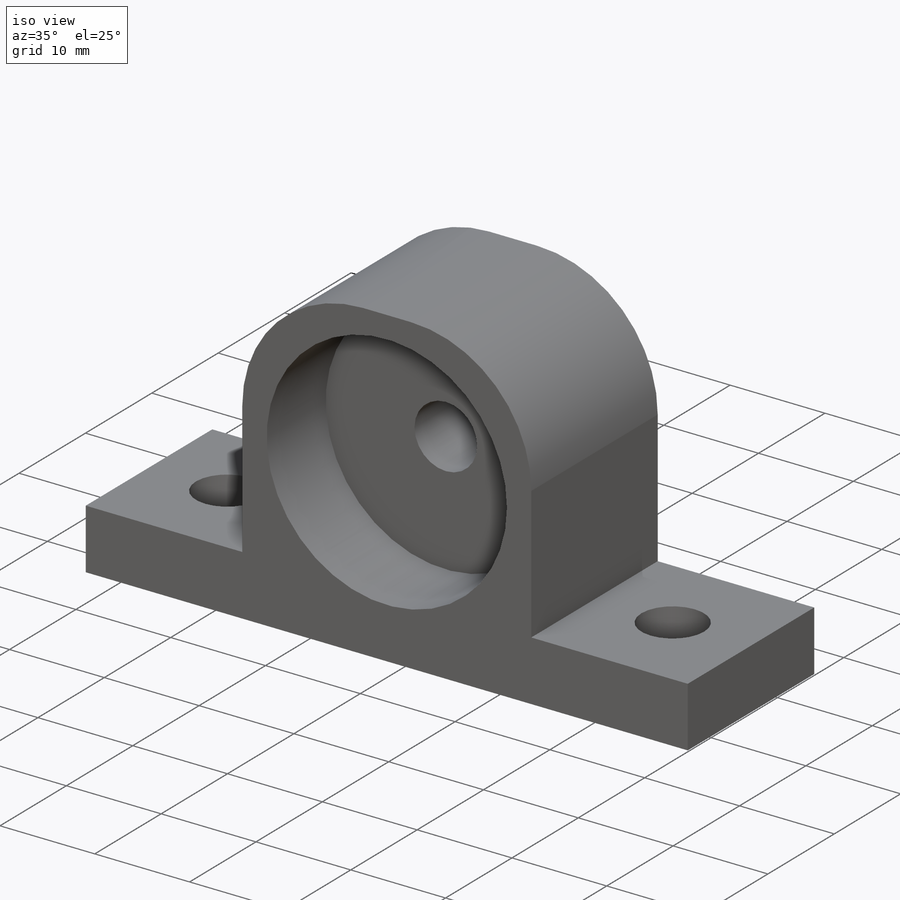
[diagram: iso view]
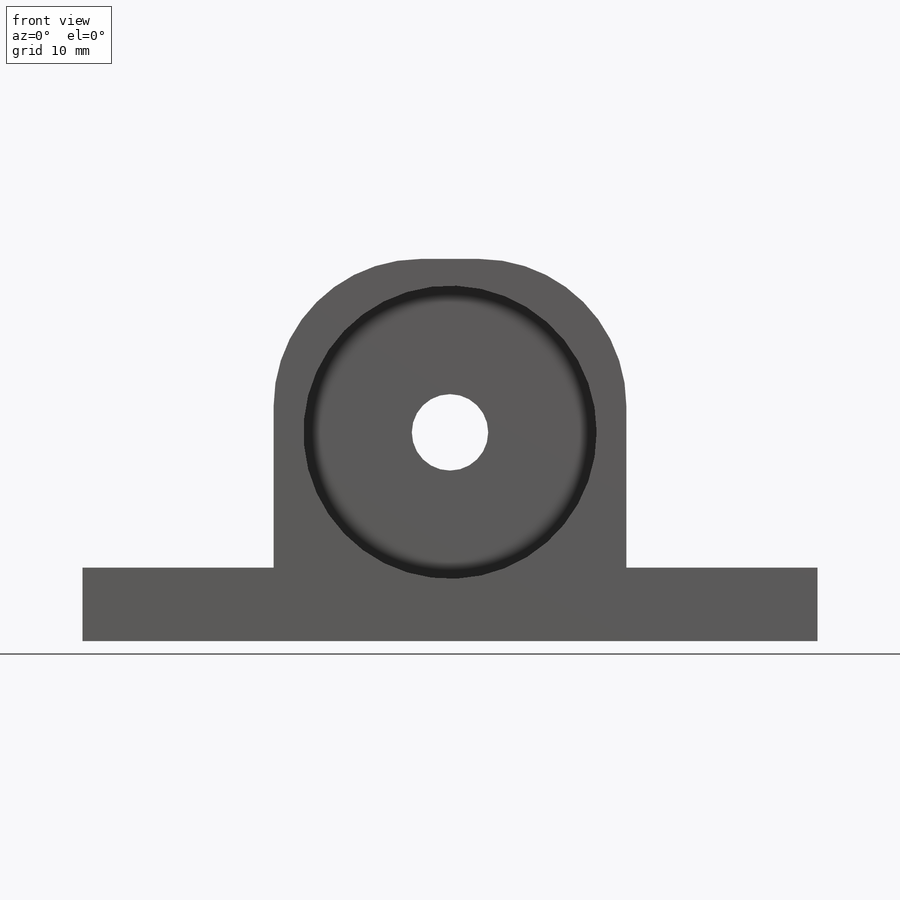
[diagram: front view]
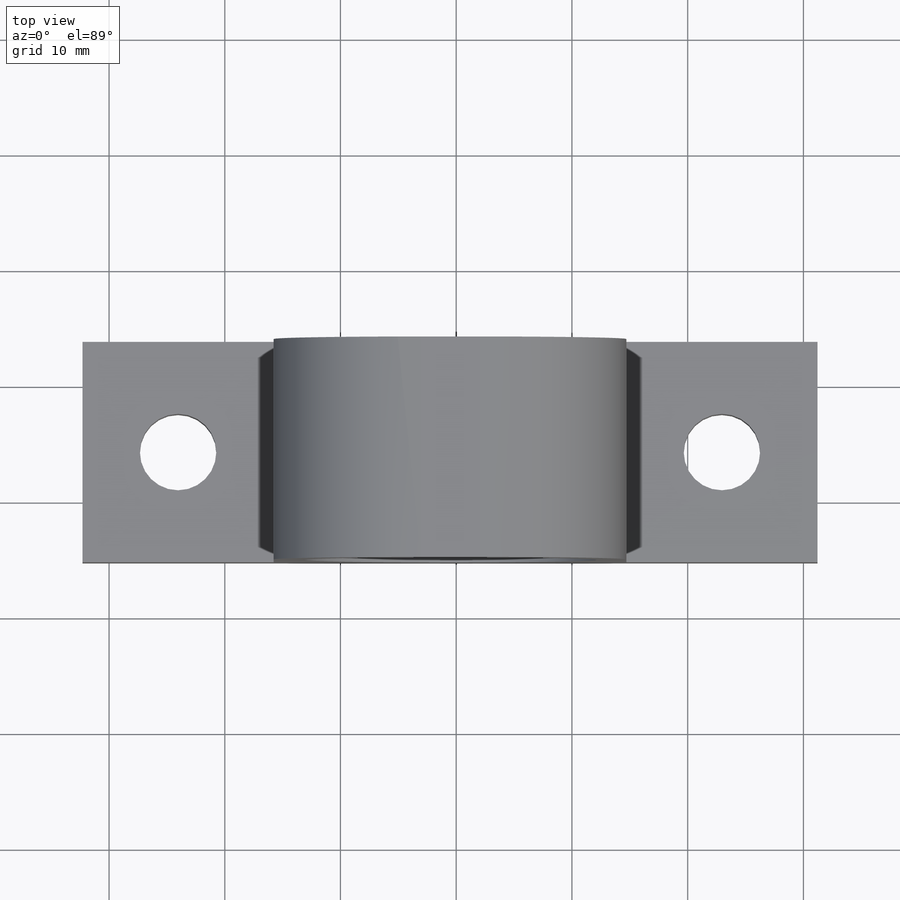
[diagram: top view]
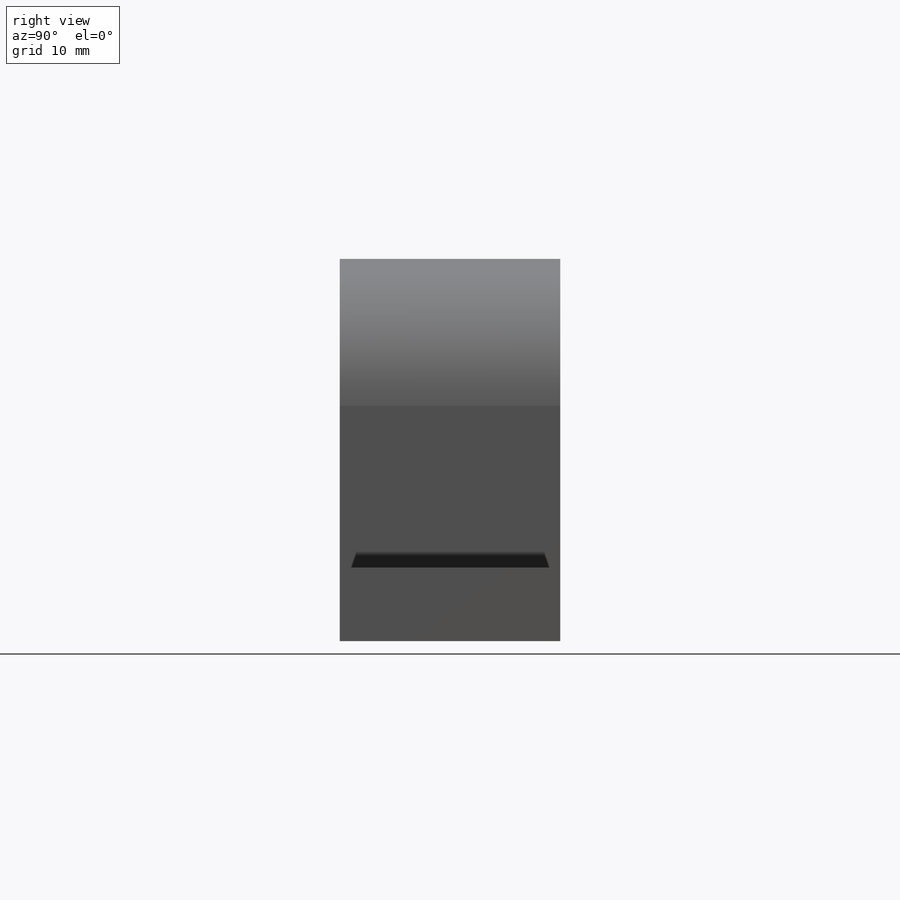
[diagram: right view]
SOLIDWORKS PART (.sldprt)
format: sldprt  version: not decoded by parser v0  size: 228,864 bytes
history: native  units: mm
features: sketch x5, cut_extrude x3, extrude x2, material x1, fillet x1 (+12 scaffold rows collapsed)
feature tree (24):
  scaffold x12  (default folders/planes/origin — collapsed)
  material  "Material <not specified>"
  sketch  "Sketch1"  dims[D1=63.5mm D2=19.05mm]
  extrude  "Boss-Extrude1"  Depth=6.35mm
  sketch  "Sketch2"  dims[D1=16.51mm D2=16.51mm D3=35.56mm]
  extrude  "Boss-Extrude2"  Depth=26.67mm
  sketch  "Sketch3"  dims[D1=6.604mm D2=6.604mm D3=8.255mm D4=8.255mm D5=9.525mm D6=9.525mm D7=8.255mm]
  cut_extrude  "Cut-Extrude1"  [1 undecoded]
  sketch  "Sketch4"  dims[c1.D1=15.24mm c1.D2=25.4mm c1.D3=15.24mm c2.D2=18.034mm c2.D3=30.48mm]
  cut_extrude  "Cut-Extrude2"  Depth=8.89mm
  sketch  "Sketch5"  dims[D3=6.604mm D1=18.034mm D2=15.24mm D4=6.35mm]
  cut_extrude  "Cut-Extrude3"  [1 undecoded]
  fillet  "Fillet1"  Radius=12.7mm
decode coverage: 9 of 11 modeling features carry decoded parameters
note: 2 parameter values undecoded
note: suppression state not decoded; provenance and decode notes live in map.json
